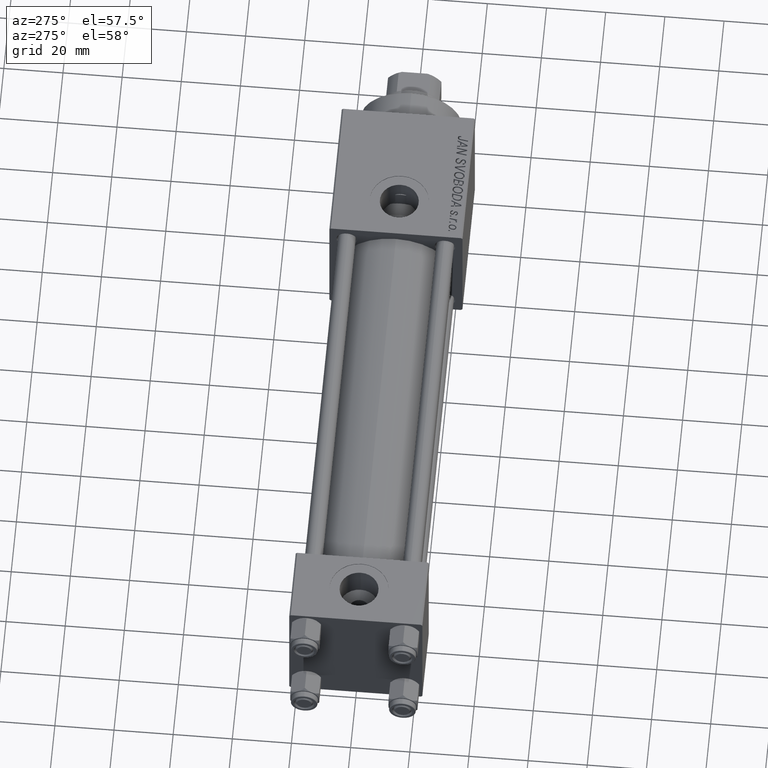
[diagram: clean part render]
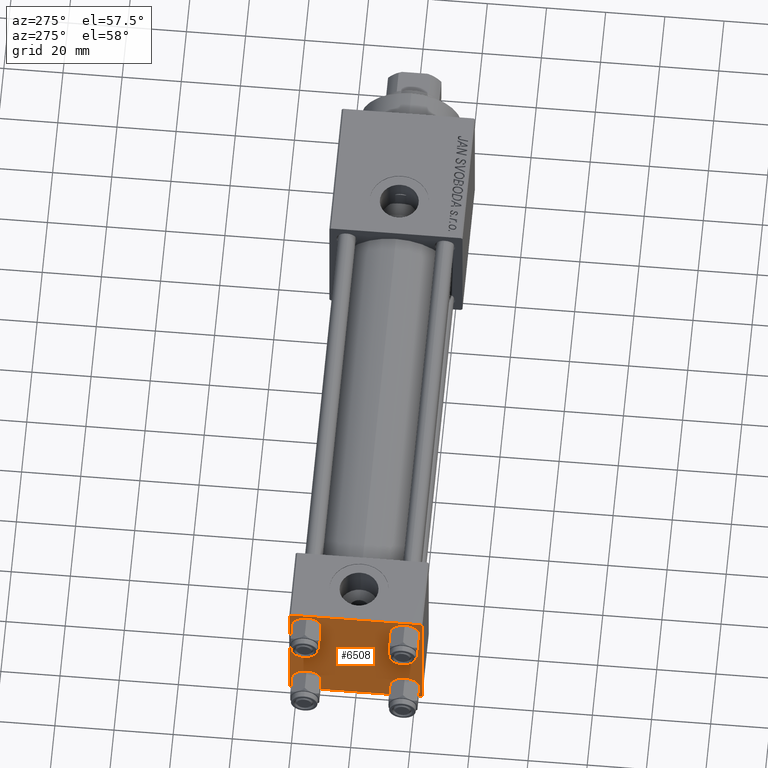
[diagram: same view with one face highlighted and labeled with its STEP entity id]
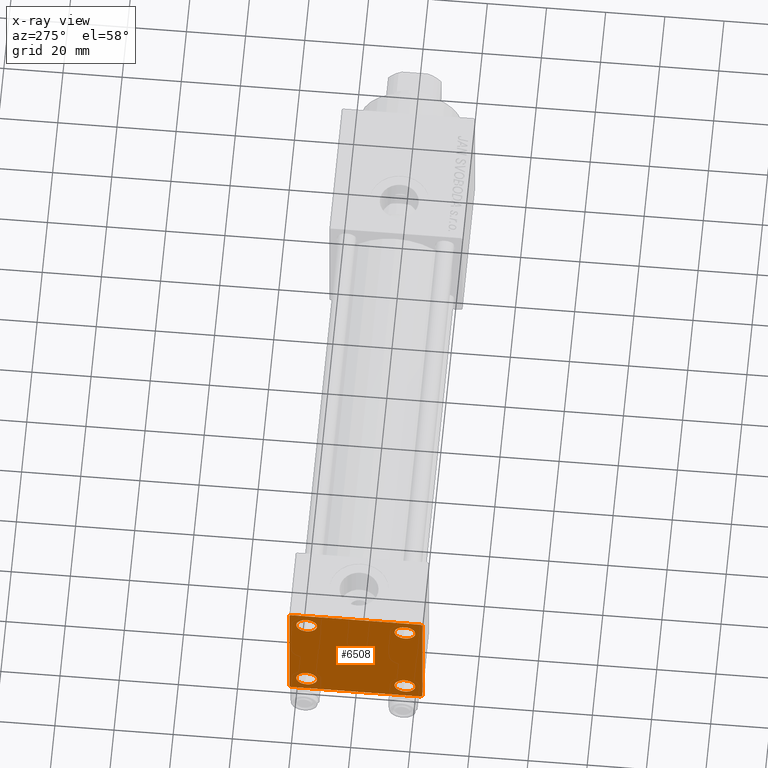
[diagram: x-ray of the same camera — body ghosted, the highlighted face saturated]
A machine part, auxiliary view. The second image highlights one B-rep face of the part: STEP entity #6508.
The next image is the same camera in x-ray: the body ghosted, the highlighted face saturated — about 0% of this face is hidden behind the body in this view.
In plain terms, the highlighted planar face has unit normal (-1, 0, 0).
Its self-contained STEP definition (entity closure, byte-faithful):
#208 = AXIS2_PLACEMENT_3D ( 'NONE', #19401, #47435, #19139 ) ;
#212 = EDGE_CURVE ( 'NONE', #17568, #12446, #4632, .T. ) ;
#818 = VERTEX_POINT ( 'NONE', #28764 ) ;
#1581 = ORIENTED_EDGE ( 'NONE', *, *, #32305, .F. ) ;
#2115 = DIRECTION ( 'NONE',  ( 0.000000000000000000, 0.000000000000000000, 1.000000000000000000 ) ) ;
#2979 = DIRECTION ( 'NONE',  ( 0.000000000000000000, 0.000000000000000000, 1.000000000000000000 ) ) ;
#3033 = ORIENTED_EDGE ( 'NONE', *, *, #14126, .T. ) ;
#3520 = AXIS2_PLACEMENT_3D ( 'NONE', #47507, #15845, #7795 ) ;
#3698 = AXIS2_PLACEMENT_3D ( 'NONE', #5567, #36961, #17497 ) ;
#4354 = FACE_BOUND ( 'NONE', #31989, .T. ) ;
#4406 = CIRCLE ( 'NONE', #45018, 3.499999999999996003 ) ;
#4417 = ORIENTED_EDGE ( 'NONE', *, *, #23439, .T. ) ;
#4432 = VERTEX_POINT ( 'NONE', #26075 ) ;
#4519 = VERTEX_POINT ( 'NONE', #13897 ) ;
#4632 = LINE ( 'NONE', #48235, #14926 ) ;
#4973 = CARTESIAN_POINT ( 'NONE',  ( 0.000000000000000000, 16.59999999999999787, 20.10000000000000142 ) ) ;
#5411 = VERTEX_POINT ( 'NONE', #47349 ) ;
#5567 = CARTESIAN_POINT ( 'NONE',  ( 0.000000000000000000, 16.59999999999999787, -16.60000000000000497 ) ) ;
#5700 = ORIENTED_EDGE ( 'NONE', *, *, #212, .F. ) ;
#5792 = CARTESIAN_POINT ( 'NONE',  ( 0.000000000000000000, 22.50000000000000000, 22.50000000000000355 ) ) ;
#6093 = LINE ( 'NONE', #44328, #18999 ) ;
#6508 = ADVANCED_FACE ( 'NONE', ( #15770, #31340, #7724, #4354, #51084 ), #39122, .T. ) ;
#7724 = FACE_BOUND ( 'NONE', #38006, .T. ) ;
#7795 = DIRECTION ( 'NONE',  ( 0.000000000000000000, 0.000000000000000000, 1.000000000000000000 ) ) ;
#8123 = ORIENTED_EDGE ( 'NONE', *, *, #37572, .T. ) ;
#8562 = CARTESIAN_POINT ( 'NONE',  ( 0.000000000000000000, 22.50000000000000000, -21.99999999999996803 ) ) ;
#9165 = DIRECTION ( 'NONE',  ( 0.000000000000000000, -1.000000000000000000, -2.312964634635742957E-16 ) ) ;
#9242 = EDGE_CURVE ( 'NONE', #4519, #45419, #43286, .T. ) ;
#9557 = ORIENTED_EDGE ( 'NONE', *, *, #14827, .T. ) ;
#9642 = DIRECTION ( 'NONE',  ( 0.000000000000000000, 0.000000000000000000, 1.000000000000000000 ) ) ;
#9691 = LINE ( 'NONE', #5792, #17068 ) ;
#10354 = VERTEX_POINT ( 'NONE', #33974 ) ;
#10381 = DIRECTION ( 'NONE',  ( 1.000000000000000000, -0.000000000000000000, 0.000000000000000000 ) ) ;
#10385 = CARTESIAN_POINT ( 'NONE',  ( 0.000000000000000000, -16.59999999999999076, -16.60000000000000853 ) ) ;
#10662 = AXIS2_PLACEMENT_3D ( 'NONE', #33092, #25551, #13119 ) ;
#11420 = CARTESIAN_POINT ( 'NONE',  ( 0.000000000000000000, -21.99999999999997868, 22.50000000000000000 ) ) ;
#11494 = VECTOR ( 'NONE', #36383, 1000.000000000000000 ) ;
#11950 = CARTESIAN_POINT ( 'NONE',  ( 0.000000000000000000, -21.99999999999997158, -22.50000000000000711 ) ) ;
#12446 = VERTEX_POINT ( 'NONE', #22373 ) ;
#13119 = DIRECTION ( 'NONE',  ( 0.000000000000000000, 0.000000000000000000, 1.000000000000000000 ) ) ;
#13637 = DIRECTION ( 'NONE',  ( 0.000000000000000000, -1.000000000000000000, -7.709882115452476934E-17 ) ) ;
#13897 = CARTESIAN_POINT ( 'NONE',  ( 0.000000000000000000, -16.59999999999999076, -20.10000000000000497 ) ) ;
#14126 = EDGE_CURVE ( 'NONE', #14408, #5411, #26800, .T. ) ;
#14214 = ORIENTED_EDGE ( 'NONE', *, *, #31358, .T. ) ;
#14408 = VERTEX_POINT ( 'NONE', #8562 ) ;
#14827 = EDGE_CURVE ( 'NONE', #42077, #41331, #20238, .T. ) ;
#14926 = VECTOR ( 'NONE', #24600, 1000.000000000000000 ) ;
#15439 = AXIS2_PLACEMENT_3D ( 'NONE', #18177, #10381, #9642 ) ;
#15770 = FACE_BOUND ( 'NONE', #34686, .T. ) ;
#15845 = DIRECTION ( 'NONE',  ( 1.000000000000000000, -0.000000000000000000, 0.000000000000000000 ) ) ;
#16064 = VECTOR ( 'NONE', #31217, 1000.000000000000000 ) ;
#16144 = LINE ( 'NONE', #47808, #41494 ) ;
#17007 = DIRECTION ( 'NONE',  ( 0.000000000000000000, 0.7071067811865474617, -0.7071067811865474617 ) ) ;
#17029 = ORIENTED_EDGE ( 'NONE', *, *, #22233, .T. ) ;
#17068 = VECTOR ( 'NONE', #21605, 1000.000000000000000 ) ;
#17497 = DIRECTION ( 'NONE',  ( 0.000000000000000000, 0.000000000000000000, 1.000000000000000000 ) ) ;
#17568 = VERTEX_POINT ( 'NONE', #22093 ) ;
#18034 = DIRECTION ( 'NONE',  ( 1.000000000000000000, -0.000000000000000000, 0.000000000000000000 ) ) ;
#18177 = CARTESIAN_POINT ( 'NONE',  ( 0.000000000000000000, 16.59999999999999787, 16.60000000000000497 ) ) ;
#18999 = VECTOR ( 'NONE', #13637, 1000.000000000000000 ) ;
#19139 = DIRECTION ( 'NONE',  ( -0.000000000000000000, 0.000000000000000000, 1.000000000000000000 ) ) ;
#19261 = DIRECTION ( 'NONE',  ( -0.000000000000000000, 0.7071067811865525687, 0.7071067811865425767 ) ) ;
#19401 = CARTESIAN_POINT ( 'NONE',  ( 0.000000000000000000, 0.000000000000000000, 0.000000000000000000 ) ) ;
#20238 = CIRCLE ( 'NONE', #3698, 3.499999999999996003 ) ;
#20565 = LINE ( 'NONE', #24451, #11494 ) ;
#20893 = LINE ( 'NONE', #49449, #25341 ) ;
#21346 = LINE ( 'NONE', #44982, #29791 ) ;
#21605 = DIRECTION ( 'NONE',  ( 0.000000000000000000, 0.000000000000000000, -1.000000000000000000 ) ) ;
#21779 = DIRECTION ( 'NONE',  ( 1.000000000000000000, -0.000000000000000000, 0.000000000000000000 ) ) ;
#22093 = CARTESIAN_POINT ( 'NONE',  ( 0.000000000000000000, -22.50000000000000000, 22.00000000000000000 ) ) ;
#22233 = EDGE_CURVE ( 'NONE', #30576, #14408, #9691, .T. ) ;
#22373 = CARTESIAN_POINT ( 'NONE',  ( 0.000000000000000000, -22.50000000000000000, -21.99999999999997158 ) ) ;
#22529 = CARTESIAN_POINT ( 'NONE',  ( 0.000000000000000000, 16.59999999999999787, -16.60000000000000497 ) ) ;
#23439 = EDGE_CURVE ( 'NONE', #35819, #40176, #27839, .T. ) ;
#24268 = CARTESIAN_POINT ( 'NONE',  ( 0.000000000000000000, -16.59999999999999076, 16.60000000000000853 ) ) ;
#24451 = CARTESIAN_POINT ( 'NONE',  ( 0.000000000000000000, -22.25000000000014566, -22.24999999999984013 ) ) ;
#24600 = DIRECTION ( 'NONE',  ( 0.000000000000000000, 0.000000000000000000, -1.000000000000000000 ) ) ;
#25341 = VECTOR ( 'NONE', #17007, 1000.000000000000114 ) ;
#25500 = ORIENTED_EDGE ( 'NONE', *, *, #9242, .T. ) ;
#25551 = DIRECTION ( 'NONE',  ( 1.000000000000000000, -0.000000000000000000, 0.000000000000000000 ) ) ;
#26075 = CARTESIAN_POINT ( 'NONE',  ( 0.000000000000000000, 21.99999999999999289, 22.50000000000000355 ) ) ;
#26556 = CARTESIAN_POINT ( 'NONE',  ( 0.000000000000000000, 16.59999999999999787, 13.10000000000000675 ) ) ;
#26800 = LINE ( 'NONE', #46017, #16064 ) ;
#27839 = CIRCLE ( 'NONE', #15439, 3.499999999999996003 ) ;
#28435 = DIRECTION ( 'NONE',  ( 0.000000000000000000, 0.000000000000000000, 1.000000000000000000 ) ) ;
#28764 = CARTESIAN_POINT ( 'NONE',  ( 0.000000000000000000, -16.59999999999999076, 13.10000000000001030 ) ) ;
#29386 = AXIS2_PLACEMENT_3D ( 'NONE', #10385, #34000, #2115 ) ;
#29791 = VECTOR ( 'NONE', #9165, 1000.000000000000000 ) ;
#30576 = VERTEX_POINT ( 'NONE', #36707 ) ;
#30783 = EDGE_CURVE ( 'NONE', #36378, #12446, #20565, .T. ) ;
#31217 = DIRECTION ( 'NONE',  ( -0.000000000000000000, -0.7071067811865426878, -0.7071067811865524577 ) ) ;
#31340 = FACE_BOUND ( 'NONE', #49444, .T. ) ;
#31358 = EDGE_CURVE ( 'NONE', #40176, #35819, #33064, .T. ) ;
#31594 = AXIS2_PLACEMENT_3D ( 'NONE', #22529, #21779, #38369 ) ;
#31759 = ORIENTED_EDGE ( 'NONE', *, *, #30783, .T. ) ;
#31989 = EDGE_LOOP ( 'NONE', ( #14214, #4417 ) ) ;
#32305 = EDGE_CURVE ( 'NONE', #4432, #34940, #6093, .T. ) ;
#32454 = CIRCLE ( 'NONE', #31594, 3.499999999999996003 ) ;
#32609 = EDGE_CURVE ( 'NONE', #5411, #36378, #21346, .T. ) ;
#33064 = CIRCLE ( 'NONE', #10662, 3.499999999999996003 ) ;
#33092 = CARTESIAN_POINT ( 'NONE',  ( 0.000000000000000000, 16.59999999999999787, 16.60000000000000497 ) ) ;
#33528 = CIRCLE ( 'NONE', #29386, 3.499999999999996003 ) ;
#33974 = CARTESIAN_POINT ( 'NONE',  ( 0.000000000000000000, -16.59999999999999076, 20.10000000000000853 ) ) ;
#34000 = DIRECTION ( 'NONE',  ( 1.000000000000000000, -0.000000000000000000, 0.000000000000000000 ) ) ;
#34123 = EDGE_LOOP ( 'NONE', ( #17029, #3033, #48741, #31759, #5700, #50309, #1581, #38441 ) ) ;
#34619 = EDGE_CURVE ( 'NONE', #17568, #34940, #16144, .T. ) ;
#34686 = EDGE_LOOP ( 'NONE', ( #40438, #41133 ) ) ;
#34940 = VERTEX_POINT ( 'NONE', #11420 ) ;
#35819 = VERTEX_POINT ( 'NONE', #26556 ) ;
#36378 = VERTEX_POINT ( 'NONE', #11950 ) ;
#36383 = DIRECTION ( 'NONE',  ( 0.000000000000000000, -0.7071067811865426878, 0.7071067811865524577 ) ) ;
#36707 = CARTESIAN_POINT ( 'NONE',  ( 0.000000000000000000, 22.50000000000000000, 21.99999999999999645 ) ) ;
#36961 = DIRECTION ( 'NONE',  ( 1.000000000000000000, -0.000000000000000000, 0.000000000000000000 ) ) ;
#37572 = EDGE_CURVE ( 'NONE', #41331, #42077, #32454, .T. ) ;
#38006 = EDGE_LOOP ( 'NONE', ( #8123, #9557 ) ) ;
#38252 = CARTESIAN_POINT ( 'NONE',  ( 0.000000000000000000, -16.59999999999999076, 16.60000000000000853 ) ) ;
#38369 = DIRECTION ( 'NONE',  ( 0.000000000000000000, 0.000000000000000000, 1.000000000000000000 ) ) ;
#38412 = CARTESIAN_POINT ( 'NONE',  ( 0.000000000000000000, 16.59999999999999787, -13.10000000000000675 ) ) ;
#38441 = ORIENTED_EDGE ( 'NONE', *, *, #50798, .T. ) ;
#39122 = PLANE ( 'NONE',  #208 ) ;
#40176 = VERTEX_POINT ( 'NONE', #4973 ) ;
#40380 = DIRECTION ( 'NONE',  ( 1.000000000000000000, -0.000000000000000000, 0.000000000000000000 ) ) ;
#40438 = ORIENTED_EDGE ( 'NONE', *, *, #48943, .T. ) ;
#41133 = ORIENTED_EDGE ( 'NONE', *, *, #44519, .T. ) ;
#41331 = VERTEX_POINT ( 'NONE', #38412 ) ;
#41494 = VECTOR ( 'NONE', #19261, 999.9999999999998863 ) ;
#42077 = VERTEX_POINT ( 'NONE', #50090 ) ;
#43072 = ORIENTED_EDGE ( 'NONE', *, *, #47244, .T. ) ;
#43286 = CIRCLE ( 'NONE', #3520, 3.499999999999996003 ) ;
#44328 = CARTESIAN_POINT ( 'NONE',  ( 0.000000000000000000, 22.50000000000000000, 22.50000000000000355 ) ) ;
#44519 = EDGE_CURVE ( 'NONE', #818, #10354, #4406, .T. ) ;
#44982 = CARTESIAN_POINT ( 'NONE',  ( 0.000000000000000000, 22.50000000000000000, -22.49999999999999645 ) ) ;
#45018 = AXIS2_PLACEMENT_3D ( 'NONE', #24268, #40380, #28435 ) ;
#45419 = VERTEX_POINT ( 'NONE', #46428 ) ;
#46004 = AXIS2_PLACEMENT_3D ( 'NONE', #38252, #18034, #2979 ) ;
#46017 = CARTESIAN_POINT ( 'NONE',  ( 0.000000000000000000, 22.25000000000014566, -22.24999999999984013 ) ) ;
#46428 = CARTESIAN_POINT ( 'NONE',  ( 0.000000000000000000, -16.59999999999999076, -13.10000000000001030 ) ) ;
#47244 = EDGE_CURVE ( 'NONE', #45419, #4519, #33528, .T. ) ;
#47349 = CARTESIAN_POINT ( 'NONE',  ( 0.000000000000000000, 21.99999999999999289, -22.49999999999999645 ) ) ;
#47435 = DIRECTION ( 'NONE',  ( -1.000000000000000000, 0.000000000000000000, -0.000000000000000000 ) ) ;
#47507 = CARTESIAN_POINT ( 'NONE',  ( 0.000000000000000000, -16.59999999999999076, -16.60000000000000853 ) ) ;
#47808 = CARTESIAN_POINT ( 'NONE',  ( -0.000000000000000000, -22.24999999999984013, 22.25000000000015277 ) ) ;
#48235 = CARTESIAN_POINT ( 'NONE',  ( 0.000000000000000000, -22.50000000000000000, 22.50000000000000000 ) ) ;
#48741 = ORIENTED_EDGE ( 'NONE', *, *, #32609, .T. ) ;
#48943 = EDGE_CURVE ( 'NONE', #10354, #818, #50979, .T. ) ;
#49444 = EDGE_LOOP ( 'NONE', ( #43072, #25500 ) ) ;
#49449 = CARTESIAN_POINT ( 'NONE',  ( 0.000000000000000000, 22.24999999999999645, 22.24999999999999645 ) ) ;
#50090 = CARTESIAN_POINT ( 'NONE',  ( 0.000000000000000000, 16.59999999999999787, -20.10000000000000142 ) ) ;
#50309 = ORIENTED_EDGE ( 'NONE', *, *, #34619, .T. ) ;
#50798 = EDGE_CURVE ( 'NONE', #4432, #30576, #20893, .T. ) ;
#50979 = CIRCLE ( 'NONE', #46004, 3.499999999999996003 ) ;
#51084 = FACE_OUTER_BOUND ( 'NONE', #34123, .T. ) ;